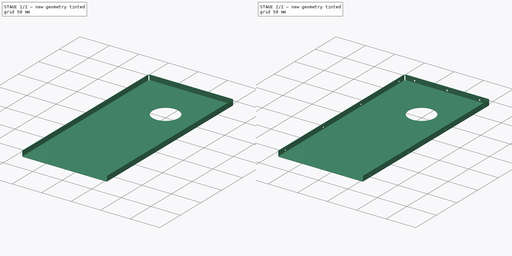
[diagram: build sequence overview — one tinted view per stage of 2, left to right]
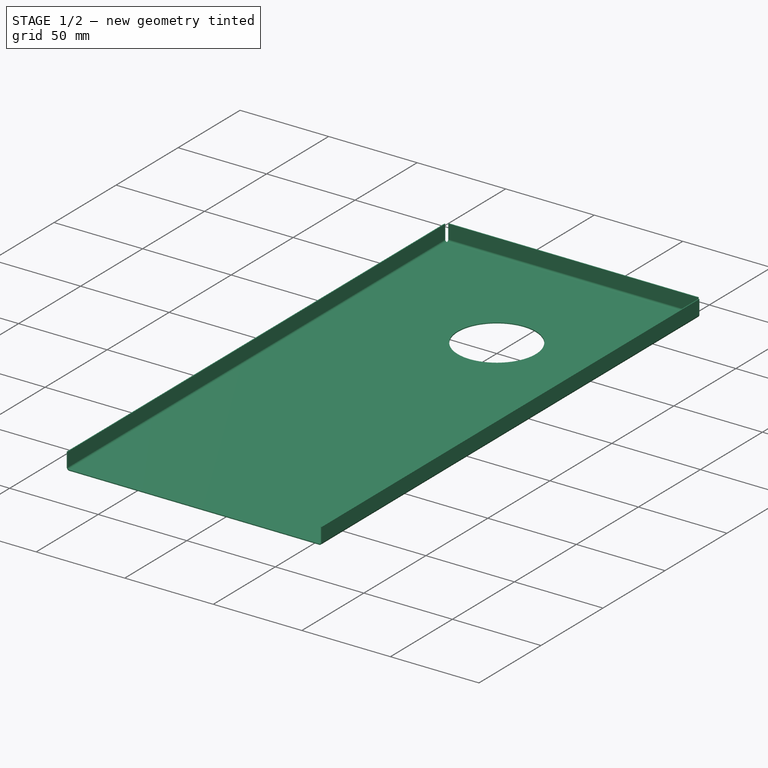
[diagram: stage 1 of 2 — iso view after this stage's code; geometry added in this stage tinted green]
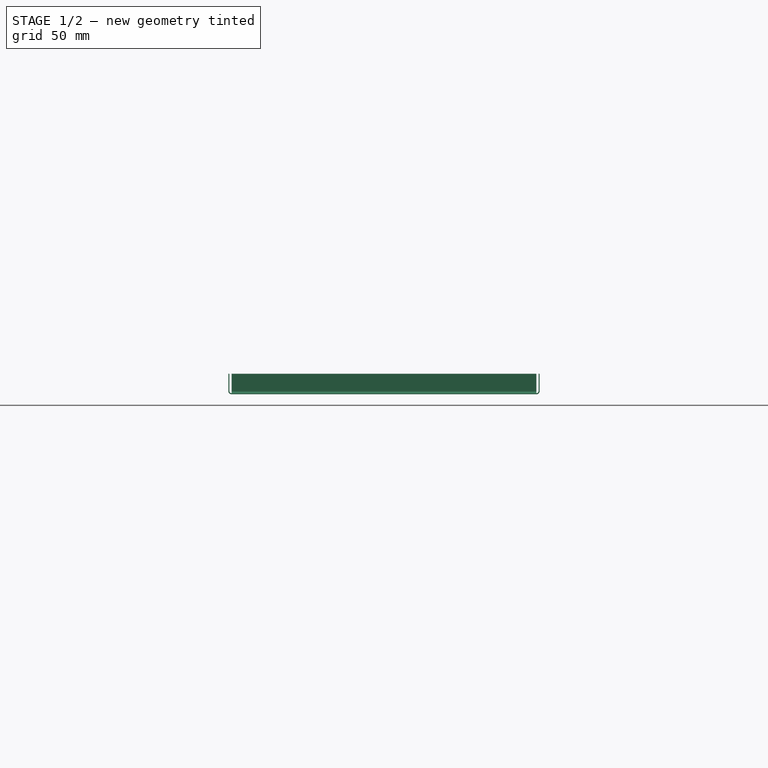
[diagram: stage 1 of 2 — front view after this stage's code; geometry added in this stage tinted green]
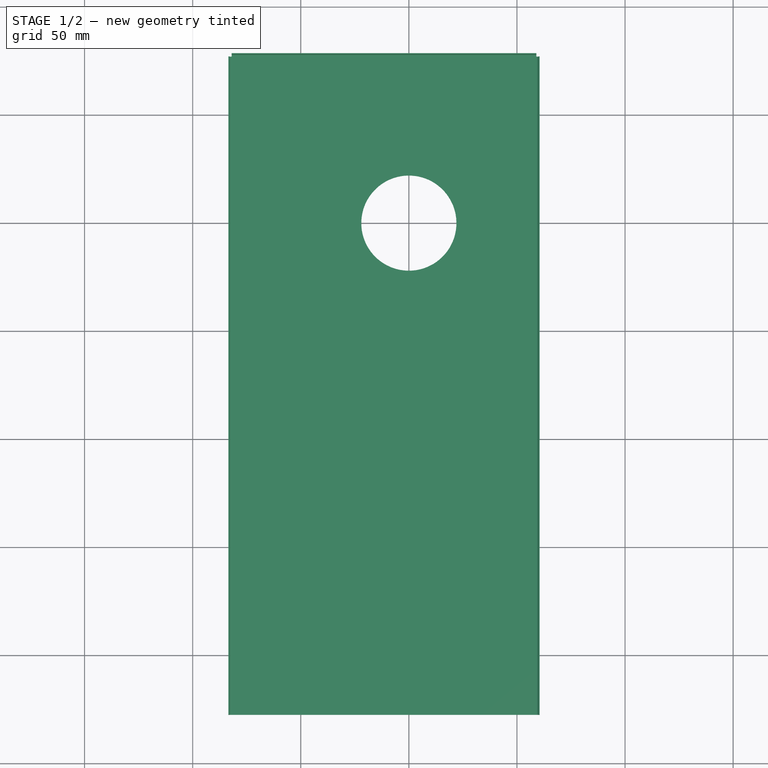
[diagram: stage 1 of 2 — top view after this stage's code; geometry added in this stage tinted green]
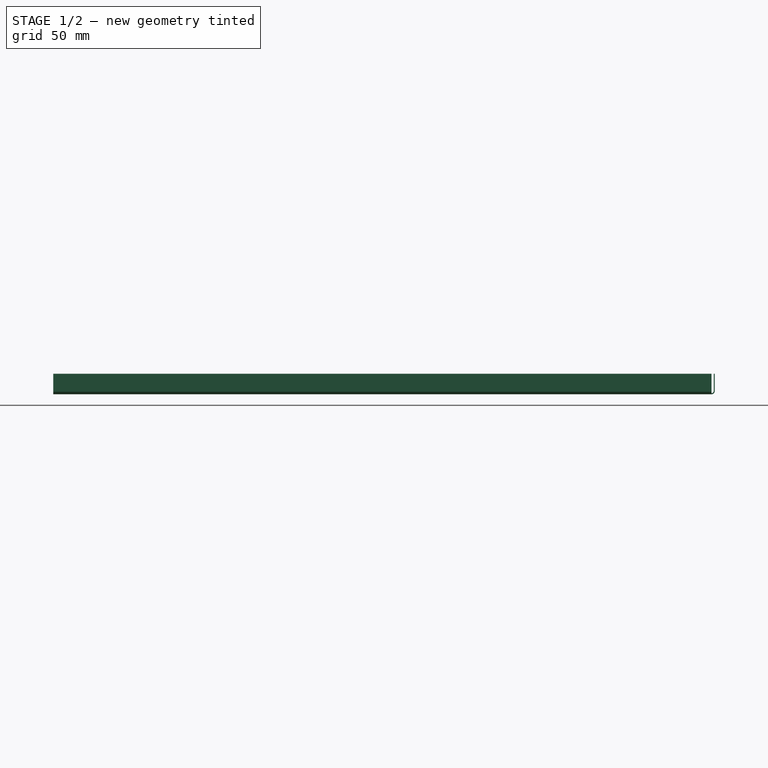
[diagram: stage 1 of 2 — right view after this stage's code; geometry added in this stage tinted green]
FCSTD DOCUMENT  (FreeCAD 0.16RUnknown)
Label: cover_side
License: CreativeCommons Attribution-ShareAlike
LicenseURL: http://creativecommons.org/licenses/by-sa/4.0/
objects: Drawing::FeatureViewPython×28, Sketcher::SketchObject×3, PartDesign::Pocket×2, Drawing::FeatureViewPart×2, PartDesign::Pad×1, Part::FeaturePython×1, Part::Feature×1, Drawing::FeaturePage×1
note: 11 computed .brp shape members not serialized (recipe doc carries the construction recipe); baked Part::Feature solids carry a one-line shape summary decoded from their .brp

FEATURE [Sketcher::SketchObject] Sketch
  sketch-geometry (5):
    g0: Circle CenterX=0 CenterY=0 CenterZ=0 NormalX=0 NormalY=0 NormalZ=1 Radius=22
    g1: LineSegment StartX=-82 StartY=77 StartZ=0 EndX=59 EndY=77 EndZ=0
    g2: LineSegment StartX=59 StartY=77 StartZ=0 EndX=59 EndY=-227.5 EndZ=0
    g3: LineSegment StartX=59 StartY=-227.5 StartZ=0 EndX=-82 EndY=-227.5 EndZ=0
    g4: LineSegment StartX=-82 StartY=-227.5 StartZ=0 EndX=-82 EndY=77 EndZ=0
  constraints (14):
    c: Coincident(g0,g-1)
    c: Coincident(g1,g2)
    c: Coincident(g2,g3)
    c: Coincident(g3,g4)
    c: Coincident(g4,g1)
    c: Horizontal(g1)
    c: Horizontal(g3)
    c: Vertical(g2)
    c: Vertical(g4)
    c: Radius(g0) = 22
    c: DistanceY(g2,g2) = 304.5  'side_W'
    c: DistanceY(g-1,g1) = 77  'circle_y'
    c: DistanceX(g1,g1) = 141  'side_L'
    c: DistanceX(g-1,g1) = 59  'circle_x'
FEATURE [PartDesign::Pad] Pad
  Length = 0.5
  Length2 = 100
  Sketch = -> Sketch
  Type = 0
FEATURE [Part::FeaturePython] Bend  # WARN: FeaturePython — macro-defined, semantics opaque (R4)
  angle = 90
  baseObject = -> Pad [Face4,Face1,Face2]
  gap1 = 0
  gap2 = 0
  invert = false
  length = 8
  radius = 1
  reliefd = 1
  reliefw = 0.5
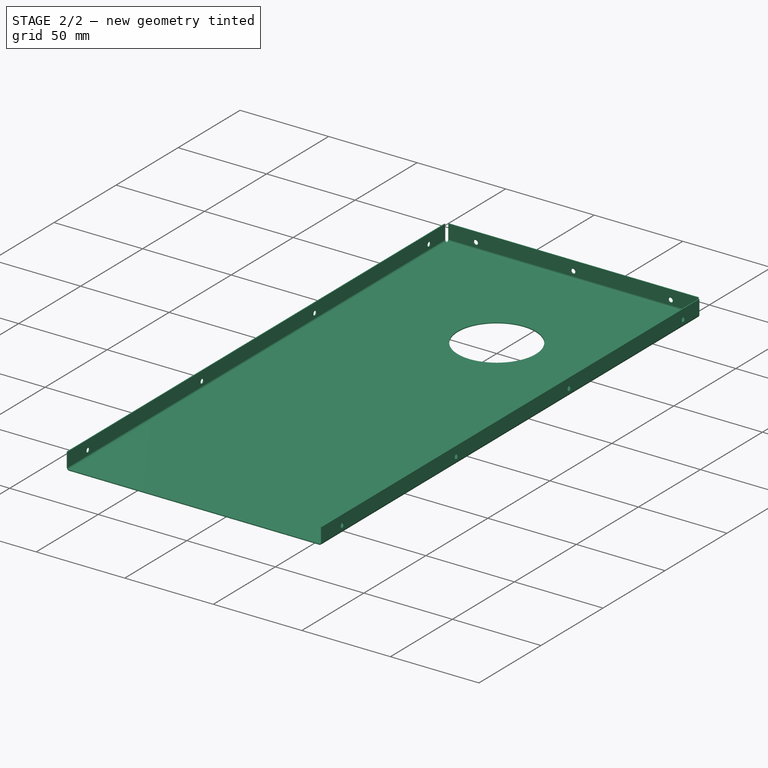
[diagram: stage 2 of 2 — iso view after this stage's code; geometry added in this stage tinted green]
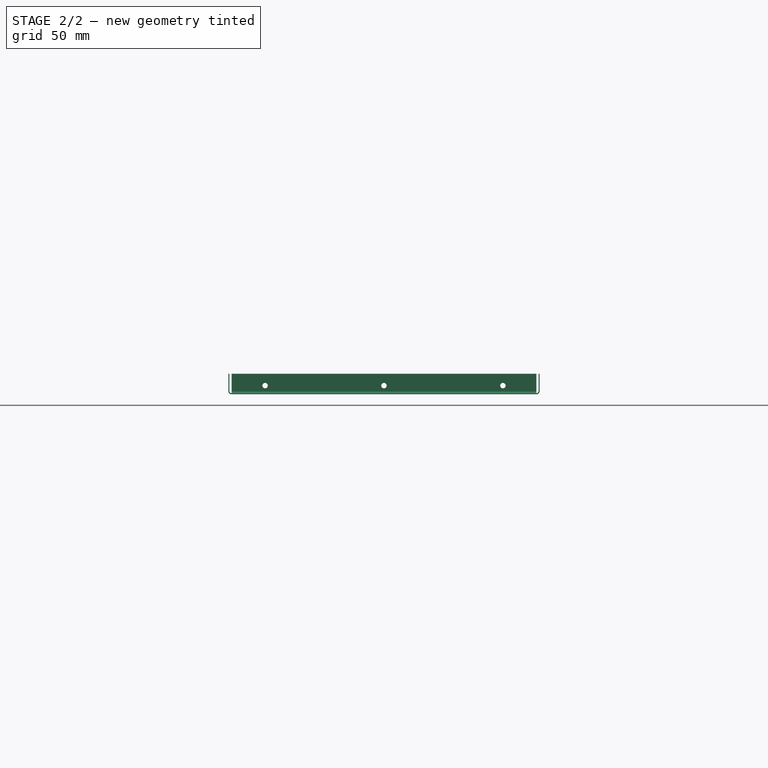
[diagram: stage 2 of 2 — front view after this stage's code; geometry added in this stage tinted green]
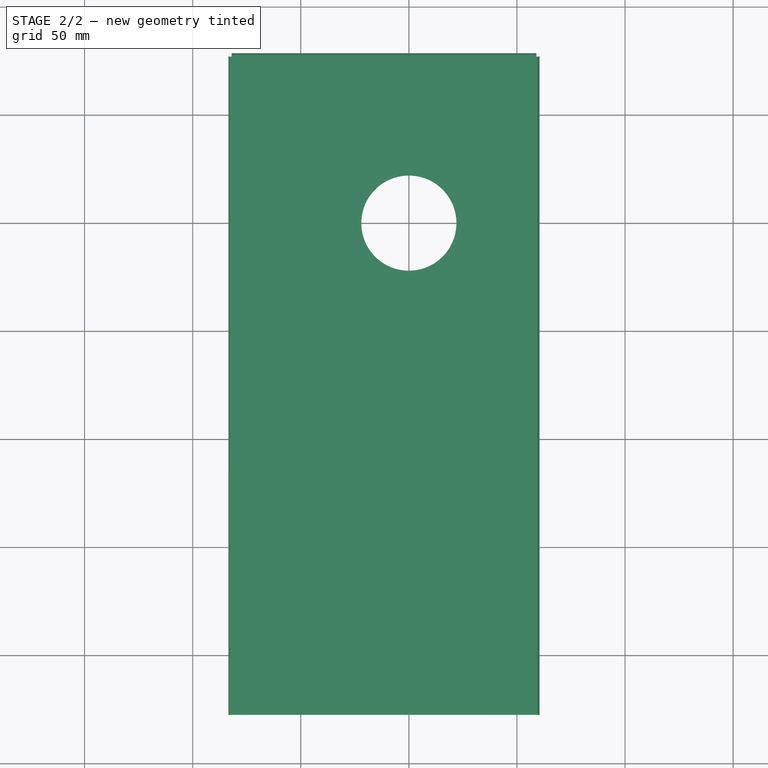
[diagram: stage 2 of 2 — top view after this stage's code; geometry added in this stage tinted green]
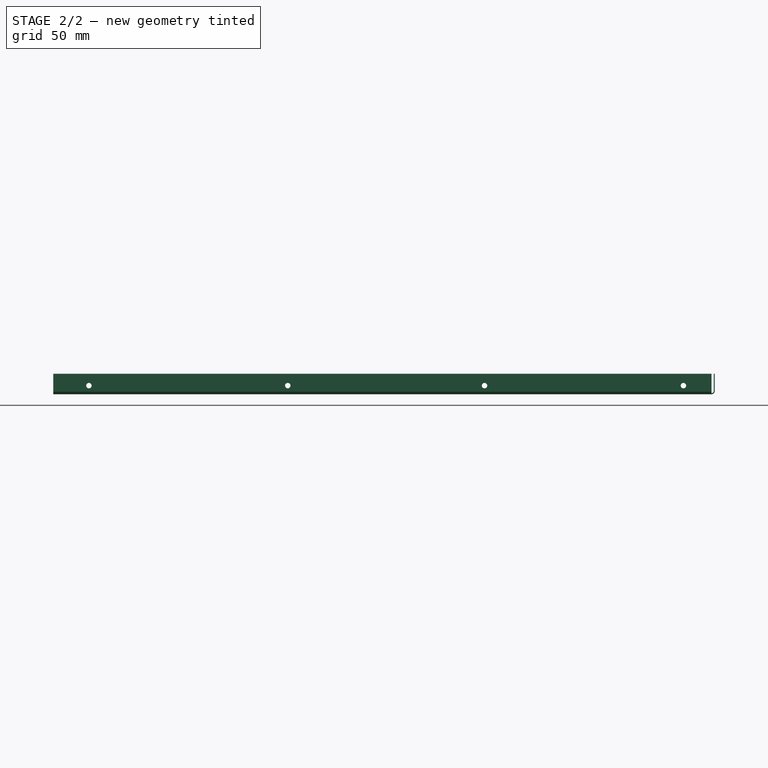
[diagram: stage 2 of 2 — right view after this stage's code; geometry added in this stage tinted green]
FEATURE [Sketcher::SketchObject] Sketch001
  Placement = pos=(0,78.5,0) rot=(0,0.707107,0.707107;3.14159rad)
  Support = -> Bend [Face22]
  expr: Constraints[6] = Sketch001.Constraints.bend_L + 0.5 + 1 - 5.5
  expr: Constraints[14] = Sketch.Constraints.side_L / 2 - Sketch.Constraints.circle_x
  expr: Constraints[5] = Sketch.Constraints.side_L + 1 - 32
  expr: Constraints.bend_L = Bend.length
  sketch-geometry (5):
    g0: Circle CenterX=66.5 CenterY=4 CenterZ=0 NormalX=0 NormalY=0 NormalZ=1 Radius=1.25
    g1: Circle CenterX=-43.5 CenterY=4 CenterZ=0 NormalX=0 NormalY=0 NormalZ=1 Radius=1.25
    g2: LineSegment [constr] StartX=-43.5 StartY=4 StartZ=0 EndX=66.5 EndY=4 EndZ=0
    g3: Circle CenterX=11.5 CenterY=4 CenterZ=0 NormalX=0 NormalY=0 NormalZ=1 Radius=1.25
    g4: LineSegment [constr] StartX=11.5 StartY=0 StartZ=0 EndX=11.5 EndY=8 EndZ=0
  constraints (15):
    c: Coincident(g2,g1)
    c: Coincident(g2,g0)
    c: Horizontal(g2)
    c: Equal(g0,g1)
    c: Radius(g0) = 1.25
    c: DistanceX(g2,g2) = 110
    c: DistanceY(g-1,g0) = 4
    c: PointOnObject(g3,g2)
    c: Equal(g3,g0)
    c: PointOnObject(g4,g-1)
    c: Vertical(g4)
    c: DistanceY(g4,g4) = 8  'bend_L'
    c: PointOnObject(g3,g4)
    c: Symmetric(g0,g1,g4)
    c: DistanceX(g-1,g3) = 11.5
FEATURE [PartDesign::Pocket] Pocket  label="Pocket-rivets-top"
  Length = 5
  Sketch = -> Sketch001
  Type = 1
FEATURE [Sketcher::SketchObject] Sketch002
  Placement = pos=(-83.5,0,0) rot=(0.57735,-0.57735,-0.57735;2.0944rad)
  Support = -> Pocket [Face26]
  expr: Constraints[17] = Sketch002.Constraints.bend_L + 0.5 + 1 - 5.5
  expr: Constraints[13] = round(Sketch002.Constraints.holes_l / 3)
  expr: Constraints.holes_l = Sketch.Constraints.side_W - 30 + 0.5
  expr: Constraints[18] = Sketch.Constraints.circle_y + 1 + 0.5 + 0.5
  expr: Constraints.bend_L = Bend.length
  sketch-geometry (7):
    g0: Circle CenterX=-64 CenterY=4 CenterZ=0 NormalX=0 NormalY=0 NormalZ=1 Radius=1.25
    g1: Circle CenterX=28 CenterY=4 CenterZ=0 NormalX=0 NormalY=0 NormalZ=1 Radius=1.25
    g2: Circle CenterX=119 CenterY=4 CenterZ=0 NormalX=0 NormalY=0 NormalZ=1 Radius=1.25
    g3: Circle CenterX=211 CenterY=4 CenterZ=0 NormalX=0 NormalY=0 NormalZ=1 Radius=1.25
    g4: LineSegment [constr] StartX=-64 StartY=4 StartZ=0 EndX=28 EndY=4 EndZ=0
    g5: LineSegment [constr] StartX=119 StartY=4 StartZ=0 EndX=211 EndY=4 EndZ=0
    g6: LineSegment [constr] StartX=-79 StartY=0 StartZ=0 EndX=-79 EndY=8 EndZ=0
  constraints (20):
    c: Coincident(g4,g0)
    c: Coincident(g4,g1)
    c: Horizontal(g4)
    c: Coincident(g5,g2)
    c: Coincident(g5,g3)
    c: Horizontal(g5)
    c: PointOnObject(g2,g4)
    c: Equal(g4,g5)
    c: DistanceX(g0,g3) = 275  'holes_l'
    c: Equal(g0,g1)
    c: Equal(g1,g2)
    c: Equal(g2,g3)
    c: Radius(g0) = 1.25
    c: DistanceX(g5,g5) = 92
    c: PointOnObject(g6,g-1)
    c: Vertical(g6)
    c: DistanceY(g6,g6) = 8  'bend_L'
    c: DistanceY(g-1,g3) = 4
    c: DistanceX(g6,g-1) = 79
    c: DistanceX(g6,g0) = 15
FEATURE [PartDesign::Pocket] Pocket001  label="Pocket-rivets-side"
  Length = 5
  Sketch = -> Sketch002
  Type = 1
FEATURE [Part::Feature] Unfold
  shape: bbox 160.8 x 314.4 x 0.5 mm, 42 faces (baked)
FEATURE [Drawing::FeatureViewPart] Ortho  label="Ortho_0_0"
  Direction = (0,0,1)
  HiddenWidth = 0.15
  LineWidth = 0.35
  Rotation = -90
  Scale = 0.5
  ShowHiddenLines = false
  ShowSmoothLines = false
  Source = -> Unfold
  Tolerance = 0.05
  ViewResult = <g id="Ortho_0_0"\n   transform="rotate(-90,80,130) translate(80,130) scale(0.5,0.5)"\n  >\n<g   stroke="rgb(0, 0, 0)"\n   stroke-width="0.7"\n   stroke-linecap="butt"\n   stroke-linejoin="miter"\n   fill="none"\n   transform="scale(1,-1)"\n  >\n<path id= "1" d=" M -82 78.8852 L -82 86.8852 " />\n<path id= "2" d=" M -82 78.8852 L 59 78.8852 " />\n<path id= "3" d=" M -82 86.8852 L 59 86.8852 " />\n<path id= "4" d=" M 59 78.8852 L 59 86.8852 " />\n<circle cx ="43.5" cy ="81.3852" r ="1.25" /><circle cx ="-11.5" cy ="81.3852" r ="1.25" /><circle cx ="-66.5" cy ="81.3852" r ="1.25" /><path id= "8" d=" M -82 77 L 59 77 " />\n<path id= "9" d=" M -82 77 L -82 78.8852 " />\n<path id= "10" d=" M 59 77 L 59 78.8852 " />\n<path id= "11" d=" M 59 77 L 60.8852 77 " />\n<path id= "12" d=" M 60.8852 77 L 68.8852 77 " />\n<path id= "13" d=" M 60.8852 77 L 60.8852 -227.5 " />\n<path id= "14" d=" M 68.8852 77 L 68.8852 -227.5 " />\n<path id= "15" d=" M 60.8852 -227.5 L 68.8852 -227.5 " />\n<circle cx ="63.3852" cy ="-119" r ="1.25" /><circle cx ="63.3852" cy ="-28" r ="1.25" /><circle cx ="63.3852" cy ="64" r ="1.25" /><circle cx ="63.3852" cy ="-211" r ="1.25" /><path id= "20" d=" M 59 77 L 59 -227.5 " />\n<path id= "21" d=" M 59 -227.5 L 60.8852 -227.5 " />\n<path id= "22" d=" M -82 77 L -83.8852 77 " />\n<path id= "23" d=" M -83.8852 -227.5 L -91.8852 -227.5 " />\n<path id= "24" d=" M -83.8852 -227.5 L -83.8852 77 " />\n<path id= "25" d=" M -91.8852 -227.5 L -91.8852 77 " />\n<path id= "26" d=" M -83.8852 77 L -91.8852 77 " />\n<circle cx ="-86.3852" cy ="-119" r ="1.25" /><circle cx ="-86.3852" cy ="-28" r ="1.25" /><circle cx ="-86.3852" cy ="64" r ="1.25" /><circle cx ="-86.3852" cy ="-211" r ="1.25" /><path id= "31" d=" M -82 -227.5 L -82 77 " />\n<path id= "32" d=" M -82 -227.5 L -83.8852 -227.5 " />\n<path id= "33" d=" M 59 -227.5 L -82 -227.5 " />\n<circle cx ="0" cy ="0" r ="22" /></g>\n</g>
  Visible = true
  X = 80
  Y = 130
FEATURE [Drawing::FeatureViewPart] Ortho002  label="Ortho_1_1"
  Direction = (0.57735,-0.57735,0.57735)
  HiddenWidth = 0.15
  LineWidth = 0.35
  Rotation = -60
  Scale = 0.5
  ShowHiddenLines = false
  ShowSmoothLines = false
  Source = -> Pocket001
  Tolerance = 0.05
  ViewResult = <blob: 6800 chars omitted>
  Visible = true
  X = 210
  Y = 45
FEATURE [Drawing::FeatureViewPython] dim002  # drawing view (typed FeaturePython)
  Rotation = 0
  ViewResult = <g> \n  <line x1="34.557400" y1="171.000000" x2="10.898195" y2="171.000000" style="stroke:rgb(0,0,255);stroke-width:0.20" />\n<line x1="34.557400" y1="100.500000" x2="10.898195" y2="100.500000" style="stroke:rgb(0,0,255);stroke-width:0.20" />\n<line x1="11.898195" y1="171.000000" x2="11.898195" y2="100.500000" style="stroke:rgb(0,0,255);stroke-width:0.20" /> \n  <polygon points="11.898195,100.500000 10.898195,103.500000 11.898195,104.500000 12.898195,103.500000" style="fill:rgb(0,0,255);stroke:rgb(0,0,255);stroke-width:0" /><polygon points="11.898195,171.000000 12.898195,168.000000 11.898195,167.000000 10.898195,168.000000" style="fill:rgb(0,0,255);stroke:rgb(0,0,255);stroke-width:0" /> \n  <text x="9.898195" y="135.750000" font-family="inherit" font-size="3.6" fill="rgb(0,0,255)" text-anchor="middle" transform="rotate(-90.000000 9.898195,135.750000)" >141</text> </g>
  Visible = true
  X = 0
  Y = 0
  arrowL1 = 3
  arrowL2 = 1
  arrowW = 2
  arrow_scheme = 0
  autoPlaceOffset = 2
  autoPlaceText = true
  click1_x = 11.8982
  click1_y = 120.723
  click2_x = 11.8982
  click2_y = 120.723
  comma_decimal_place = false
  dimension_line_overshoot = 1
  gap_datum_points = 2
  halfDimension_linear = false
  lineColor = rgb(0,0,255)
  strokeWidth = 0.2
  textFormat_linear = %(value)3.3f
  textRenderer_color = rgb(0,0,255)
  textRenderer_family = inherit
  textRenderer_size = 3.6
  unit_custom_scale = 1
  unit_scheme = 0
FEATURE [Drawing::FeatureViewPython] dia001  # drawing view (typed FeaturePython)
  Rotation = 0
  ViewResult = <g>  <circle cx ="80.000000" cy ="130.000000" r="0.250000" stroke="none" fill="rgb(0,0,255)" /> \n<line x1="97.855403" y1="117.530955" x2="70.981398" y2="136.298001" style="stroke:rgb(0,0,255);stroke-width:0.20" />\n<polygon points="89.018602,123.701999 85.986438,124.599762 85.739110,125.992181 87.131529,126.239508" style="fill:rgb(0,0,255);stroke:rgb(0,0,255);stroke-width:0" />\n<polygon points="70.981398,136.298001 74.013562,135.400238 74.260890,134.007819 72.868471,133.760492" style="fill:rgb(0,0,255);stroke:rgb(0,0,255);stroke-width:0" />\n<line x1="97.855403" y1="117.530955" x2="110.566158" y2="117.530955" style="stroke:rgb(0,0,255);stroke-width:0.20" />\n<text x="104.210780" y="115.530955" font-family="inherit" font-size="3.6" fill="rgb(0,0,255)" text-anchor="middle" transform="rotate(0.000000 104.210780,115.530955)" >Ø44</text> </g>
  Visible = true
  X = 0
  Y = 0
  arrowL1 = 3
  arrowL2 = 1
  arrowW = 2
  arrow_scheme = 0
  autoPlaceOffset = 2
  autoPlaceText = true
  centerPointDia = 0.5
  click1_x = 97.8554
  click1_y = 117.531
  click2_x = 110.566
  click2_y = 117.531
  click3_x = 110.566
  click3_y = 117.531
  comma_decimal_place = false
  lineColor = rgb(0,0,255)
  strokeWidth = 0.2
  textFormat_circular = Ø%(value)3.3f
  textRenderer_color = rgb(0,0,255)
  textRenderer_family = inherit
  textRenderer_size = 3.6
  unit_custom_scale = 1
  unit_scheme = 0
FEATURE [Drawing::FeatureViewPython] dia002  # drawing view (typed FeaturePython)
  Rotation = 0
  ViewResult = <g>  <circle cx ="185.500000" cy ="173.192600" r="0.250000" stroke="none" fill="rgb(0,0,255)" /> \n<line x1="181.678736" y1="181.360838" x2="185.764839" y2="172.626486" style="stroke:rgb(0,0,255);stroke-width:0.20" />\n<polygon points="185.235161,173.758714 183.058149,176.052318 183.540189,177.381844 184.869714,176.899804" style="fill:rgb(0,0,255);stroke:rgb(0,0,255);stroke-width:0" />\n<polygon points="185.764839,172.626486 187.941851,170.332882 187.459811,169.003356 186.130286,169.485396" style="fill:rgb(0,0,255);stroke:rgb(0,0,255);stroke-width:0" />\n<line x1="181.678736" y1="181.360838" x2="167.055426" y2="181.360838" style="stroke:rgb(0,0,255);stroke-width:0.20" />\n<text x="174.367081" y="179.360838" font-family="inherit" font-size="3.6" fill="rgb(0,0,255)" text-anchor="middle" transform="rotate(0.000000 174.367081,179.360838)" >Ø2.5</text> </g>
  Visible = true
  X = 0
  Y = 0
  arrowL1 = 3
  arrowL2 = 1
  arrowW = 2
  arrow_scheme = 0
  autoPlaceOffset = 2
  autoPlaceText = true
  centerPointDia = 0.5
  click1_x = 181.679
  click1_y = 181.361
  click2_x = 167.055
  click2_y = 180.248
  click3_x = 167.055
  click3_y = 180.248
  comma_decimal_place = false
  lineColor = rgb(0,0,255)
  strokeWidth = 0.2
  textFormat_circular = Ø%(value)3.3f
  textRenderer_color = rgb(0,0,255)
  textRenderer_family = inherit
  textRenderer_size = 3.6
  unit_custom_scale = 1
  unit_scheme = 0
FEATURE [Drawing::FeatureViewPython] dim009  # drawing view (typed FeaturePython)
  Rotation = 0
  ViewResult = <g> \n  <line x1="185.500000" y1="175.192600" x2="185.500000" y2="190.094248" style="stroke:rgb(0,0,255);stroke-width:0.20" />\n<line x1="139.500000" y1="175.192600" x2="139.500000" y2="190.094248" style="stroke:rgb(0,0,255);stroke-width:0.20" />\n<line x1="185.500000" y1="189.094248" x2="139.500000" y2="189.094248" style="stroke:rgb(0,0,255);stroke-width:0.20" /> \n  <polygon points="139.500000,189.094248 142.500000,190.094248 143.500000,189.094248 142.500000,188.094248" style="fill:rgb(0,0,255);stroke:rgb(0,0,255);stroke-width:0" /><polygon points="185.500000,189.094248 182.500000,188.094248 181.500000,189.094248 182.500000,190.094248" style="fill:rgb(0,0,255);stroke:rgb(0,0,255);stroke-width:0" /> \n  <text x="162.500000" y="187.094248" font-family="inherit" font-size="3.6" fill="rgb(0,0,255)" text-anchor="middle" transform="rotate(0.000000 162.500000,187.094248)" >92</text> </g>
  Visible = true
  X = 0
  Y = 0
  arrowL1 = 3
  arrowL2 = 1
  arrowW = 2
  arrow_scheme = 0
  autoPlaceOffset = 2
  autoPlaceText = true
  click1_x = 161.757
  click1_y = 189.094
  click2_x = 161.757
  click2_y = 189.094
  comma_decimal_place = false
  dimension_line_overshoot = 1
  gap_datum_points = 2
  halfDimension_linear = false
  lineColor = rgb(0,0,255)
  strokeWidth = 0.2
  textFormat_linear = %(value)3.3f
  textRenderer_color = rgb(0,0,255)
  textRenderer_family = inherit
  textRenderer_size = 3.6
  unit_custom_scale = 1
  unit_scheme = 0
FEATURE [Drawing::FeatureViewPython] dim010  # drawing view (typed FeaturePython)
  Rotation = 0
  ViewResult = <g> \n  <line x1="94.000000" y1="175.192600" x2="94.000000" y2="190.113594" style="stroke:rgb(0,0,255);stroke-width:0.20" />\n<line x1="139.500000" y1="175.192600" x2="139.500000" y2="190.113594" style="stroke:rgb(0,0,255);stroke-width:0.20" />\n<line x1="94.000000" y1="189.113594" x2="139.500000" y2="189.113594" style="stroke:rgb(0,0,255);stroke-width:0.20" /> \n  <polygon points="139.500000,189.113594 136.500000,188.113594 135.500000,189.113594 136.500000,190.113594" style="fill:rgb(0,0,255);stroke:rgb(0,0,255);stroke-width:0" /><polygon points="94.000000,189.113594 97.000000,190.113594 98.000000,189.113594 97.000000,188.113594" style="fill:rgb(0,0,255);stroke:rgb(0,0,255);stroke-width:0" /> \n  <text x="116.750000" y="187.113594" font-family="inherit" font-size="3.6" fill="rgb(0,0,255)" text-anchor="middle" transform="rotate(0.000000 116.750000,187.113594)" >91</text> </g>
  Visible = true
  X = 0
  Y = 0
  arrowL1 = 3
  arrowL2 = 1
  arrowW = 2
  arrow_scheme = 0
  autoPlaceOffset = 2
  autoPlaceText = true
  click1_x = 192.257
  click1_y = 189.114
  click2_x = 192.257
  click2_y = 189.114
  comma_decimal_place = false
  dimension_line_overshoot = 1
  gap_datum_points = 2
  halfDimension_linear = false
  lineColor = rgb(0,0,255)
  strokeWidth = 0.2
  textFormat_linear = %(value)3.3f
  textRenderer_color = rgb(0,0,255)
  textRenderer_family = inherit
  textRenderer_size = 3.6
  unit_custom_scale = 1
  unit_scheme = 0
FEATURE [Drawing::FeatureViewPython] dim011  # drawing view (typed FeaturePython)
  Rotation = 0
  ViewResult = <g> \n  <line x1="48.000000" y1="175.192600" x2="48.000000" y2="190.153122" style="stroke:rgb(0,0,255);stroke-width:0.20" />\n<line x1="94.000000" y1="175.192600" x2="94.000000" y2="190.153122" style="stroke:rgb(0,0,255);stroke-width:0.20" />\n<line x1="48.000000" y1="189.153122" x2="94.000000" y2="189.153122" style="stroke:rgb(0,0,255);stroke-width:0.20" /> \n  <polygon points="94.000000,189.153122 91.000000,188.153122 90.000000,189.153122 91.000000,190.153122" style="fill:rgb(0,0,255);stroke:rgb(0,0,255);stroke-width:0" /><polygon points="48.000000,189.153122 51.000000,190.153122 52.000000,189.153122 51.000000,188.153122" style="fill:rgb(0,0,255);stroke:rgb(0,0,255);stroke-width:0" /> \n  <text x="71.000000" y="187.153122" font-family="inherit" font-size="3.6" fill="rgb(0,0,255)" text-anchor="middle" transform="rotate(0.000000 71.000000,187.153122)" >92</text> </g>
  Visible = true
  X = 0
  Y = 0
  arrowL1 = 3
  arrowL2 = 1
  arrowW = 2
  arrow_scheme = 0
  autoPlaceOffset = 2
  autoPlaceText = true
  click1_x = 94.0392
  click1_y = 189.153
  click2_x = 94.0392
  click2_y = 189.153
  comma_decimal_place = false
  dimension_line_overshoot = 1
  gap_datum_points = 2
  halfDimension_linear = false
  lineColor = rgb(0,0,255)
  strokeWidth = 0.2
  textFormat_linear = %(value)3.3f
  textRenderer_color = rgb(0,0,255)
  textRenderer_family = inherit
  textRenderer_size = 3.6
  unit_custom_scale = 1
  unit_scheme = 0
FEATURE [Drawing::FeatureViewPython] dim012  # drawing view (typed FeaturePython)
  Rotation = 0
  ViewResult = <g> \n  <line x1="41.500000" y1="93.557400" x2="41.500000" y2="91.436838" style="stroke:rgb(0,0,255);stroke-width:0.20" />\n<line x1="48.000000" y1="96.307400" x2="48.000000" y2="91.436838" style="stroke:rgb(0,0,255);stroke-width:0.20" />\n<line x1="41.500000" y1="92.436838" x2="48.000000" y2="92.436838" style="stroke:rgb(0,0,255);stroke-width:0.20" /> \n  <polygon points="48.000000,92.436838 51.000000,93.436838 52.000000,92.436838 51.000000,91.436838" style="fill:rgb(0,0,255);stroke:rgb(0,0,255);stroke-width:0" /><polygon points="41.500000,92.436838 38.500000,91.436838 37.500000,92.436838 38.500000,93.436838" style="fill:rgb(0,0,255);stroke:rgb(0,0,255);stroke-width:0" /> \n  <text x="44.750000" y="90.436838" font-family="inherit" font-size="3.6" fill="rgb(0,0,255)" text-anchor="middle" transform="rotate(0.000000 44.750000,90.436838)" >13</text> </g>
  Visible = true
  X = 0
  Y = 0
  arrowL1 = 3
  arrowL2 = 1
  arrowW = 2
  arrow_scheme = 0
  autoPlaceOffset = 2
  autoPlaceText = true
  click1_x = 47.513
  click1_y = 92.4368
  click2_x = 47.513
  click2_y = 92.4368
  comma_decimal_place = false
  dimension_line_overshoot = 1
  gap_datum_points = 2
  halfDimension_linear = false
  lineColor = rgb(0,0,255)
  strokeWidth = 0.2
  textFormat_linear = %(value)3.3f
  textRenderer_color = rgb(0,0,255)
  textRenderer_family = inherit
  textRenderer_size = 3.6
  unit_custom_scale = 1
  unit_scheme = 0
FEATURE [Drawing::FeatureViewPython] dim001  # drawing view (typed FeaturePython)
  Rotation = 0
  ViewResult = <g> \n  <line x1="41.500000" y1="93.557400" x2="41.500000" y2="79.854279" style="stroke:rgb(0,0,255);stroke-width:0.20" />\n<line x1="193.750000" y1="93.557400" x2="193.750000" y2="79.854279" style="stroke:rgb(0,0,255);stroke-width:0.20" />\n<line x1="41.500000" y1="80.854279" x2="193.750000" y2="80.854279" style="stroke:rgb(0,0,255);stroke-width:0.20" /> \n  <polygon points="193.750000,80.854279 190.750000,79.854279 189.750000,80.854279 190.750000,81.854279" style="fill:rgb(0,0,255);stroke:rgb(0,0,255);stroke-width:0" /><polygon points="41.500000,80.854279 44.500000,81.854279 45.500000,80.854279 44.500000,79.854279" style="fill:rgb(0,0,255);stroke:rgb(0,0,255);stroke-width:0" /> \n  <text x="117.625000" y="78.854279" font-family="inherit" font-size="3.6" fill="rgb(0,0,255)" text-anchor="middle" transform="rotate(0.000000 117.625000,78.854279)" >304.5</text> </g>
  Visible = true
  X = 0
  Y = 0
  arrowL1 = 3
  arrowL2 = 1
  arrowW = 2
  arrow_scheme = 0
  autoPlaceOffset = 2
  autoPlaceText = true
  click1_x = 92.3523
  click1_y = 80.8543
  click2_x = 92.3523
  click2_y = 80.8543
  comma_decimal_place = false
  dimension_line_overshoot = 1
  gap_datum_points = 2
  halfDimension_linear = false
  lineColor = rgb(0,0,255)
  strokeWidth = 0.2
  textFormat_linear = %(value)3.3f
  textRenderer_color = rgb(0,0,255)
  textRenderer_family = inherit
  textRenderer_size = 3.6
  unit_custom_scale = 1
  unit_scheme = 0
FEATURE [Drawing::FeatureViewPython] dim014  # drawing view (typed FeaturePython)
  Rotation = 0
  ViewResult = <g> \n  <line x1="34.557400" y1="100.500000" x2="19.052597" y2="100.500000" style="stroke:rgb(0,0,255);stroke-width:0.20" />\n<line x1="37.307400" y1="135.750000" x2="19.052597" y2="135.750000" style="stroke:rgb(0,0,255);stroke-width:0.20" />\n<line x1="20.052597" y1="100.500000" x2="20.052597" y2="135.750000" style="stroke:rgb(0,0,255);stroke-width:0.20" /> \n  <polygon points="20.052597,135.750000 21.052597,132.750000 20.052597,131.750000 19.052597,132.750000" style="fill:rgb(0,0,255);stroke:rgb(0,0,255);stroke-width:0" /><polygon points="20.052597,100.500000 19.052597,103.500000 20.052597,104.500000 21.052597,103.500000" style="fill:rgb(0,0,255);stroke:rgb(0,0,255);stroke-width:0" /> \n  <text x="18.052597" y="118.125000" font-family="inherit" font-size="3.6" fill="rgb(0,0,255)" text-anchor="middle" transform="rotate(-90.000000 18.052597,118.125000)" >70.5</text> </g>
  Visible = true
  X = 0
  Y = 0
  arrowL1 = 3
  arrowL2 = 1
  arrowW = 2
  arrow_scheme = 0
  autoPlaceOffset = 2
  autoPlaceText = true
  click1_x = 20.0526
  click1_y = 131.262
  click2_x = 20.0526
  click2_y = 131.262
  comma_decimal_place = false
  dimension_line_overshoot = 1
  gap_datum_points = 2
  halfDimension_linear = false
  lineColor = rgb(0,0,255)
  strokeWidth = 0.2
  textFormat_linear = %(value)3.3f
  textRenderer_color = rgb(0,0,255)
  textRenderer_family = inherit
  textRenderer_size = 3.6
  unit_custom_scale = 1
  unit_scheme = 0
FEATURE [Drawing::FeatureViewPython] dim005  # drawing view (typed FeaturePython)
  Rotation = 0
  ViewResult = <g> \n  <line x1="37.307400" y1="135.750000" x2="19.057309" y2="135.750000" style="stroke:rgb(0,0,255);stroke-width:0.20" />\n<line x1="37.307400" y1="163.250000" x2="19.057309" y2="163.250000" style="stroke:rgb(0,0,255);stroke-width:0.20" />\n<line x1="20.057309" y1="135.750000" x2="20.057309" y2="163.250000" style="stroke:rgb(0,0,255);stroke-width:0.20" /> \n  <polygon points="20.057309,163.250000 21.057309,160.250000 20.057309,159.250000 19.057309,160.250000" style="fill:rgb(0,0,255);stroke:rgb(0,0,255);stroke-width:0" /><polygon points="20.057309,135.750000 19.057309,138.750000 20.057309,139.750000 21.057309,138.750000" style="fill:rgb(0,0,255);stroke:rgb(0,0,255);stroke-width:0" /> \n  <text x="18.057309" y="149.500000" font-family="inherit" font-size="3.6" fill="rgb(0,0,255)" text-anchor="middle" transform="rotate(-90.000000 18.057309,149.500000)" >55</text> </g>
  Visible = true
  X = 0
  Y = 0
  arrowL1 = 3
  arrowL2 = 1
  arrowW = 2
  arrow_scheme = 0
  autoPlaceOffset = 2
  autoPlaceText = true
  click1_x = 20.0573
  click1_y = 135.656
  click2_x = 20.0573
  click2_y = 135.656
  comma_decimal_place = false
  dimension_line_overshoot = 1
  gap_datum_points = 2
  halfDimension_linear = false
  lineColor = rgb(0,0,255)
  strokeWidth = 0.2
  textFormat_linear = %(value)3.3f
  textRenderer_color = rgb(0,0,255)
  textRenderer_family = inherit
  textRenderer_size = 3.6
  unit_custom_scale = 1
  unit_scheme = 0
FEATURE [Drawing::FeatureViewPython] centerLines005  # drawing view (typed FeaturePython)
  Rotation = 0
  ViewResult = <g transform="scale(0.500000,0.500000)" stroke="rgb(0,0,255)"  stroke-width="0.400000" > <path d="M 73.114800,271.500000 L 79.114800,271.500000 M 83.114800,271.500000 L 95.114800,271.500000 M 99.114800,271.500000 L 105.114800,271.500000 M 109.114800,271.500000 L 121.114800,271.500000 M 125.114800,271.500000 L 131.114800,271.500000 M 135.114800,271.500000 L 147.114800,271.500000 M 151.114800,271.500000 L 157.114800,271.500000 M 161.114800,271.500000 L 173.114800,271.500000 M 177.114800,271.500000 L 183.114800,271.500000 M 187.114800,271.500000 L 199.114800,271.500000 M 203.114800,271.500000 L 209.114800,271.500000 M 213.114800,271.500000 L 225.114800,271.500000 M 229.114800,271.500000 L 235.114800,271.500000 M 239.114800,271.500000 L 251.114800,271.500000 M 255.114800,271.500000 L 261.114800,271.500000 M 265.114800,271.500000 L 277.114800,271.500000 M 281.114800,271.500000 L 287.114800,271.500000 M 291.114800,271.500000 L 303.114800,271.500000 M 307.114800,271.500000 L 313.114800,271.500000 M 317.114800,271.500000 L 329.114800,271.500000 M 333.114800,271.500000 L 339.114800,271.500000 M 343.114800,271.500000 L 355.114800,271.500000 M 359.114800,271.500000 L 365.114800,271.500000 M 369.114800,271.500000 L 381.114800,271.500000 M 385.114800,271.500000 L 391.114800,271.500000 M 395.114800,271.500000 L 406.655187,271.500000 "/>\n<path d="M 73.114800,271.500000 L 67.114800,271.500000 M 63.114800,271.500000 L 51.114800,271.500000 M 47.114800,271.500000 L 41.114800,271.500000 M 37.114800,271.500000 L 28.992302,271.500000 "/> </g> 
  Visible = true
  X = 0
  Y = 0
  centerLine_color = rgb(0,0,255)
  centerLine_len_dash = 6
  centerLine_len_dot = 3
  centerLine_len_gap = 2
  centerLine_width = 0.2
  click1_x = 203.328
  click1_y = 135.997
  click2_x = 14.4962
  click2_y = 135.806
FEATURE [Drawing::FeatureViewPython] dim004  # drawing view (typed FeaturePython)
  Rotation = 0
  ViewResult = <g> \n  <line x1="80.000000" y1="128.000000" x2="80.000000" y2="85.454155" style="stroke:rgb(0,0,255);stroke-width:0.20" />\n<line x1="41.500000" y1="93.557400" x2="41.500000" y2="85.454155" style="stroke:rgb(0,0,255);stroke-width:0.20" />\n<line x1="80.000000" y1="86.454155" x2="41.500000" y2="86.454155" style="stroke:rgb(0,0,255);stroke-width:0.20" /> \n  <polygon points="41.500000,86.454155 44.500000,87.454155 45.500000,86.454155 44.500000,85.454155" style="fill:rgb(0,0,255);stroke:rgb(0,0,255);stroke-width:0" /><polygon points="80.000000,86.454155 77.000000,85.454155 76.000000,86.454155 77.000000,87.454155" style="fill:rgb(0,0,255);stroke:rgb(0,0,255);stroke-width:0" /> \n  <text x="60.750000" y="84.454155" font-family="inherit" font-size="3.6" fill="rgb(0,0,255)" text-anchor="middle" transform="rotate(0.000000 60.750000,84.454155)" >77</text> </g>
  Visible = true
  X = 0
  Y = 0
  arrowL1 = 3
  arrowL2 = 1
  arrowW = 2
  arrow_scheme = 0
  autoPlaceOffset = 2
  autoPlaceText = true
  click1_x = 61.2081
  click1_y = 86.4542
  click2_x = 61.2081
  click2_y = 86.4542
  comma_decimal_place = false
  dimension_line_overshoot = 1
  gap_datum_points = 2
  halfDimension_linear = false
  lineColor = rgb(0,0,255)
  strokeWidth = 0.2
  textFormat_linear = %(value)3.3f
  textRenderer_color = rgb(0,0,255)
  textRenderer_family = inherit
  textRenderer_size = 3.6
  unit_custom_scale = 1
  unit_scheme = 0
FEATURE [Drawing::FeatureViewPython] dim015  # drawing view (typed FeaturePython)
  Rotation = 0
  ViewResult = <g> \n  <line x1="78.000000" y1="130.000000" x2="25.363432" y2="130.000000" style="stroke:rgb(0,0,255);stroke-width:0.20" />\n<line x1="34.557400" y1="100.500000" x2="25.363432" y2="100.500000" style="stroke:rgb(0,0,255);stroke-width:0.20" />\n<line x1="26.363432" y1="130.000000" x2="26.363432" y2="100.500000" style="stroke:rgb(0,0,255);stroke-width:0.20" /> \n  <polygon points="26.363432,100.500000 25.363432,103.500000 26.363432,104.500000 27.363432,103.500000" style="fill:rgb(0,0,255);stroke:rgb(0,0,255);stroke-width:0" /><polygon points="26.363432,130.000000 27.363432,127.000000 26.363432,126.000000 25.363432,127.000000" style="fill:rgb(0,0,255);stroke:rgb(0,0,255);stroke-width:0" /> \n  <text x="24.363432" y="115.250000" font-family="inherit" font-size="3.6" fill="rgb(0,0,255)" text-anchor="middle" transform="rotate(-90.000000 24.363432,115.250000)" >59</text> </g>
  Visible = true
  X = 0
  Y = 0
  arrowL1 = 3
  arrowL2 = 1
  arrowW = 2
  arrow_scheme = 0
  autoPlaceOffset = 2
  autoPlaceText = true
  click1_x = 26.3634
  click1_y = 120.989
  click2_x = 26.3634
  click2_y = 120.989
  comma_decimal_place = false
  dimension_line_overshoot = 1
  gap_datum_points = 2
  halfDimension_linear = false
  lineColor = rgb(0,0,255)
  strokeWidth = 0.2
  textFormat_linear = %(value)3.3f
  textRenderer_color = rgb(0,0,255)
  textRenderer_family = inherit
  textRenderer_size = 3.6
  unit_custom_scale = 1
  unit_scheme = 0
FEATURE [Drawing::FeatureViewPython] centerLines001  # drawing view (typed FeaturePython)
  Rotation = 0
  ViewResult = <g transform="scale(0.500000,0.500000)" stroke="rgb(0,0,255)"  stroke-width="0.400000" > <path d="M 82.057400,201.000000 L 82.057400,195.000000 M 82.057400,191.000000 L 82.057400,179.000000 M 82.057400,175.000000 L 82.057400,169.000000 M 82.057400,165.000000 L 82.057400,153.000000 M 82.057400,149.000000 L 82.057400,143.000000 "/>\n<path d="M 82.057400,201.000000 L 82.057400,207.000000 M 82.057400,211.000000 L 82.057400,223.000000 M 82.057400,227.000000 L 82.057400,233.000000 M 82.057400,237.000000 L 82.057400,249.000000 M 82.057400,253.000000 L 82.057400,259.000000 M 82.057400,263.000000 L 82.057400,275.000000 M 82.057400,279.000000 L 82.057400,285.000000 M 82.057400,289.000000 L 82.057400,301.000000 M 82.057400,305.000000 L 82.057400,311.000000 M 82.057400,315.000000 L 82.057400,327.000000 M 82.057400,331.000000 L 82.057400,337.000000 M 82.057400,341.000000 L 82.057400,353.000000 M 82.057400,357.000000 L 82.057400,363.000000 M 82.057400,367.000000 L 82.057400,379.000000 M 82.057400,383.000000 L 82.057400,389.000000 "/> </g> 
  Visible = true
  X = 0
  Y = 0
  centerLine_color = rgb(0,0,255)
  centerLine_len_dash = 6
  centerLine_len_dot = 3
  centerLine_len_gap = 2
  centerLine_width = 0.2
  click1_x = 39.9581
  click1_y = 71.4604
  click2_x = 42.5769
  click2_y = 196.299
FEATURE [Drawing::FeatureViewPython] centerLines002  # drawing view (typed FeaturePython)
  Rotation = 0
  ViewResult = <g transform="scale(0.500000,0.500000)" stroke="rgb(0,0,255)"  stroke-width="0.400000" > <path d="M 83.000000,200.057400 L 77.000000,200.057400 M 73.000000,200.057400 L 61.000000,200.057400 M 57.000000,200.057400 L 51.000000,200.057400 M 47.000000,200.057400 L 35.000000,200.057400 M 31.000000,200.057400 L 25.000000,200.057400 M 21.000000,200.057400 L 15.256616,200.057400 "/>\n<path d="M 83.000000,200.057400 L 89.000000,200.057400 M 93.000000,200.057400 L 105.000000,200.057400 M 109.000000,200.057400 L 115.000000,200.057400 M 119.000000,200.057400 L 131.000000,200.057400 M 135.000000,200.057400 L 141.000000,200.057400 M 145.000000,200.057400 L 157.000000,200.057400 M 161.000000,200.057400 L 167.000000,200.057400 M 171.000000,200.057400 L 183.000000,200.057400 M 187.000000,200.057400 L 193.000000,200.057400 M 197.000000,200.057400 L 209.000000,200.057400 M 213.000000,200.057400 L 219.000000,200.057400 M 223.000000,200.057400 L 235.000000,200.057400 M 239.000000,200.057400 L 245.000000,200.057400 M 249.000000,200.057400 L 261.000000,200.057400 M 265.000000,200.057400 L 271.000000,200.057400 M 275.000000,200.057400 L 287.000000,200.057400 M 291.000000,200.057400 L 297.000000,200.057400 M 301.000000,200.057400 L 313.000000,200.057400 M 317.000000,200.057400 L 323.000000,200.057400 M 327.000000,200.057400 L 339.000000,200.057400 M 343.000000,200.057400 L 349.000000,200.057400 M 353.000000,200.057400 L 365.000000,200.057400 M 369.000000,200.057400 L 375.000000,200.057400 M 379.000000,200.057400 L 391.000000,200.057400 M 395.000000,200.057400 L 401.000000,200.057400 M 405.000000,200.057400 L 417.000000,200.057400 "/> </g> 
  Visible = true
  X = 0
  Y = 0
  centerLine_color = rgb(0,0,255)
  centerLine_len_dash = 6
  centerLine_len_dot = 3
  centerLine_len_gap = 2
  centerLine_width = 0.2
  click1_x = 7.62831
  click1_y = 96.4436
  click2_x = 208.689
  click2_y = 100.149
FEATURE [Drawing::FeatureViewPython] centerLines003  # drawing view (typed FeaturePython)
  Rotation = 0
  ViewResult = <g transform="scale(0.500000,0.500000)" stroke="rgb(0,0,255)"  stroke-width="0.400000" > <path d="M 83.000000,342.942600 L 77.000000,342.942600 M 73.000000,342.942600 L 61.000000,342.942600 M 57.000000,342.942600 L 51.000000,342.942600 M 47.000000,342.942600 L 35.000000,342.942600 M 31.000000,342.942600 L 25.000000,342.942600 M 21.000000,342.942600 L 14.038739,342.942600 "/>\n<path d="M 83.000000,342.942600 L 89.000000,342.942600 M 93.000000,342.942600 L 105.000000,342.942600 M 109.000000,342.942600 L 115.000000,342.942600 M 119.000000,342.942600 L 131.000000,342.942600 M 135.000000,342.942600 L 141.000000,342.942600 M 145.000000,342.942600 L 157.000000,342.942600 M 161.000000,342.942600 L 167.000000,342.942600 M 171.000000,342.942600 L 183.000000,342.942600 M 187.000000,342.942600 L 193.000000,342.942600 M 197.000000,342.942600 L 209.000000,342.942600 M 213.000000,342.942600 L 219.000000,342.942600 M 223.000000,342.942600 L 235.000000,342.942600 M 239.000000,342.942600 L 245.000000,342.942600 M 249.000000,342.942600 L 261.000000,342.942600 M 265.000000,342.942600 L 271.000000,342.942600 M 275.000000,342.942600 L 287.000000,342.942600 M 291.000000,342.942600 L 297.000000,342.942600 M 301.000000,342.942600 L 313.000000,342.942600 M 317.000000,342.942600 L 323.000000,342.942600 M 327.000000,342.942600 L 339.000000,342.942600 M 343.000000,342.942600 L 349.000000,342.942600 M 353.000000,342.942600 L 365.000000,342.942600 M 369.000000,342.942600 L 375.000000,342.942600 M 379.000000,342.942600 L 391.000000,342.942600 M 395.000000,342.942600 L 401.000000,342.942600 M 405.000000,342.942600 L 415.145579,342.942600 "/> </g> 
  Visible = true
  X = 0
  Y = 0
  centerLine_color = rgb(0,0,255)
  centerLine_len_dash = 6
  centerLine_len_dot = 3
  centerLine_len_gap = 2
  centerLine_width = 0.2
  click1_x = 7.01937
  click1_y = 171.187
  click2_x = 207.573
  click2_y = 172.619
FEATURE [Drawing::FeatureViewPython] text001  # drawing view (typed FeaturePython)
  Rotation = 0
  ViewResult = <g> <text x="7.591123" y="99.669985" font-family="inherit" font-size="5" fill="rgb(0,0,0)" text-anchor="inherit" transform="rotate(0.000000 7.591123,99.669985)" >A</text> </g>
  Visible = true
  X = 0
  Y = 0
  click1_x = 7.59112
  click1_y = 99.67
  rotation = 0
  text = A
  textRenderer_addText_color = rgb(0,0,0)
  textRenderer_addText_family = inherit
  textRenderer_addText_size = 5
FEATURE [Drawing::FeatureViewPython] text002  # drawing view (typed FeaturePython)
  Rotation = 0
  ViewResult = <g> <text x="6.589516" y="175.657078" font-family="inherit" font-size="5" fill="rgb(0,0,0)" text-anchor="inherit" transform="rotate(0.000000 6.589516,175.657078)" >B</text> </g>
  Visible = true
  X = 0
  Y = 0
  click1_x = 6.58952
  click1_y = 175.657
  rotation = 0
  text = B
  textRenderer_addText_color = rgb(0,0,0)
  textRenderer_addText_family = inherit
  textRenderer_addText_size = 5
FEATURE [Drawing::FeatureViewPython] text003  # drawing view (typed FeaturePython)
  Rotation = 0
  ViewResult = <g> <text x="41.338418" y="74.960864" font-family="inherit" font-size="5" fill="rgb(0,0,0)" text-anchor="inherit" transform="rotate(0.000000 41.338418,74.960864)" >C</text> </g>
  Visible = true
  X = 0
  Y = 0
  click1_x = 41.3384
  click1_y = 74.9609
  rotation = 0
  text = C
  textRenderer_addText_color = rgb(0,0,0)
  textRenderer_addText_family = inherit
  textRenderer_addText_size = 5
FEATURE [Drawing::FeatureViewPython] dim006  # drawing view (typed FeaturePython)
  Rotation = 0
  ViewResult = <g> \n  <line x1="36.557400" y1="98.500000" x2="36.557400" y2="66.347060" style="stroke:rgb(0,0,255);stroke-width:0.20" />\n<line x1="41.028700" y1="69.500000" x2="41.028700" y2="66.347060" style="stroke:rgb(0,0,255);stroke-width:0.20" />\n<line x1="36.557400" y1="67.347060" x2="41.028700" y2="67.347060" style="stroke:rgb(0,0,255);stroke-width:0.20" /> \n  <polygon points="41.028700,67.347060 44.028700,68.347060 45.028700,67.347060 44.028700,66.347060" style="fill:rgb(0,0,255);stroke:rgb(0,0,255);stroke-width:0" /><polygon points="36.557400,67.347060 33.557400,66.347060 32.557400,67.347060 33.557400,68.347060" style="fill:rgb(0,0,255);stroke:rgb(0,0,255);stroke-width:0" /> \n  <text x="38.793050" y="65.347060" font-family="inherit" font-size="3.6" fill="rgb(0,0,255)" text-anchor="middle" transform="rotate(0.000000 38.793050,65.347060)" >8.9</text> </g>
  Visible = true
  X = 0
  Y = 0
  arrowL1 = 3
  arrowL2 = 1
  arrowW = 2
  arrow_scheme = 0
  autoPlaceOffset = 2
  autoPlaceText = true
  click1_x = 37.9236
  click1_y = 67.3471
  click2_x = 37.9236
  click2_y = 67.3471
  comma_decimal_place = false
  dimension_line_overshoot = 1
  gap_datum_points = 2
  halfDimension_linear = false
  lineColor = rgb(0,0,255)
  strokeWidth = 0.2
  textFormat_linear = %(value)3.1f
  textRenderer_color = rgb(0,0,255)
  textRenderer_family = inherit
  textRenderer_size = 3.6
  unit_custom_scale = 1
  unit_scheme = 0
FEATURE [Drawing::FeatureViewPython] dim003  # drawing view (typed FeaturePython)
  Rotation = 0
  ViewResult = <g> \n  <line x1="36.557400" y1="173.000000" x2="36.557400" y2="200.269878" style="stroke:rgb(0,0,255);stroke-width:0.20" />\n<line x1="193.750000" y1="177.942600" x2="193.750000" y2="200.269878" style="stroke:rgb(0,0,255);stroke-width:0.20" />\n<line x1="36.557400" y1="199.269878" x2="193.750000" y2="199.269878" style="stroke:rgb(0,0,255);stroke-width:0.20" /> \n  <polygon points="193.750000,199.269878 190.750000,198.269878 189.750000,199.269878 190.750000,200.269878" style="fill:rgb(0,0,255);stroke:rgb(0,0,255);stroke-width:0" /><polygon points="36.557400,199.269878 39.557400,200.269878 40.557400,199.269878 39.557400,198.269878" style="fill:rgb(0,0,255);stroke:rgb(0,0,255);stroke-width:0" /> \n  <text x="115.153700" y="197.269878" font-family="inherit" font-size="3.6" fill="rgb(0,0,255)" text-anchor="middle" transform="rotate(0.000000 115.153700,197.269878)" >314.4</text> </g>
  Visible = true
  X = 0
  Y = 0
  arrowL1 = 3
  arrowL2 = 1
  arrowW = 2
  arrow_scheme = 0
  autoPlaceOffset = 2
  autoPlaceText = true
  click1_x = 113.869
  click1_y = 199.27
  click2_x = 113.869
  click2_y = 199.27
  comma_decimal_place = false
  dimension_line_overshoot = 1
  gap_datum_points = 2
  halfDimension_linear = false
  lineColor = rgb(0,0,255)
  strokeWidth = 0.2
  textFormat_linear = %(value)3.1f
  textRenderer_color = rgb(0,0,255)
  textRenderer_family = inherit
  textRenderer_size = 3.6
  unit_custom_scale = 1
  unit_scheme = 0
FEATURE [Drawing::FeatureViewPython] dim008  # drawing view (typed FeaturePython)
  Rotation = 0
  ViewResult = <g> \n  <line x1="195.750000" y1="95.557400" x2="212.774861" y2="95.557400" style="stroke:rgb(0,0,255);stroke-width:0.20" />\n<line x1="210.500000" y1="100.028700" x2="212.774861" y2="100.028700" style="stroke:rgb(0,0,255);stroke-width:0.20" />\n<line x1="211.774861" y1="95.557400" x2="211.774861" y2="100.028700" style="stroke:rgb(0,0,255);stroke-width:0.20" /> \n  <polygon points="211.774861,100.028700 210.774861,103.028700 211.774861,104.028700 212.774861,103.028700" style="fill:rgb(0,0,255);stroke:rgb(0,0,255);stroke-width:0" /><polygon points="211.774861,95.557400 212.774861,92.557400 211.774861,91.557400 210.774861,92.557400" style="fill:rgb(0,0,255);stroke:rgb(0,0,255);stroke-width:0" /> \n  <text x="209.774861" y="97.793050" font-family="inherit" font-size="3.6" fill="rgb(0,0,255)" text-anchor="middle" transform="rotate(-90.000000 209.774861,97.793050)" >8.9</text> </g>
  Visible = true
  X = 0
  Y = 0
  arrowL1 = 3
  arrowL2 = 1
  arrowW = 2
  arrow_scheme = 0
  autoPlaceOffset = 2
  autoPlaceText = true
  click1_x = 211.775
  click1_y = 98.7248
  click2_x = 211.775
  click2_y = 98.7248
  comma_decimal_place = false
  dimension_line_overshoot = 1
  gap_datum_points = 2
  halfDimension_linear = false
  lineColor = rgb(0,0,255)
  strokeWidth = 0.2
  textFormat_linear = %(value)3.1f
  textRenderer_color = rgb(0,0,255)
  textRenderer_family = inherit
  textRenderer_size = 3.6
  unit_custom_scale = 1
  unit_scheme = 0
FEATURE [Drawing::FeatureViewPython] dim013  # drawing view (typed FeaturePython)
  Rotation = 0
  ViewResult = <g> \n  <line x1="187.500000" y1="173.192600" x2="213.139607" y2="173.192600" style="stroke:rgb(0,0,255);stroke-width:0.20" />\n<line x1="195.750000" y1="175.942600" x2="213.139607" y2="175.942600" style="stroke:rgb(0,0,255);stroke-width:0.20" />\n<line x1="212.139607" y1="173.192600" x2="212.139607" y2="175.942600" style="stroke:rgb(0,0,255);stroke-width:0.20" /> \n  <polygon points="212.139607,175.942600 211.139607,178.942600 212.139607,179.942600 213.139607,178.942600" style="fill:rgb(0,0,255);stroke:rgb(0,0,255);stroke-width:0" /><polygon points="212.139607,173.192600 213.139607,170.192600 212.139607,169.192600 211.139607,170.192600" style="fill:rgb(0,0,255);stroke:rgb(0,0,255);stroke-width:0" /> \n  <text x="210.139607" y="174.567600" font-family="inherit" font-size="3.6" fill="rgb(0,0,255)" text-anchor="middle" transform="rotate(-90.000000 210.139607,174.567600)" >5.5</text> </g>
  Visible = true
  X = 0
  Y = 0
  arrowL1 = 3
  arrowL2 = 1
  arrowW = 2
  arrow_scheme = 0
  autoPlaceOffset = 2
  autoPlaceText = true
  click1_x = 212.14
  click1_y = 175.633
  click2_x = 212.14
  click2_y = 175.633
  comma_decimal_place = false
  dimension_line_overshoot = 1
  gap_datum_points = 2
  halfDimension_linear = false
  lineColor = rgb(0,0,255)
  strokeWidth = 0.2
  textFormat_linear = %(value)3.1f
  textRenderer_color = rgb(0,0,255)
  textRenderer_family = inherit
  textRenderer_size = 3.6
  unit_custom_scale = 1
  unit_scheme = 0
FEATURE [Drawing::FeatureViewPython] dim016  # drawing view (typed FeaturePython)
  Rotation = 0
  ViewResult = <g> \n  <line x1="36.557400" y1="173.000000" x2="36.557400" y2="190.437030" style="stroke:rgb(0,0,255);stroke-width:0.20" />\n<line x1="39.307400" y1="165.250000" x2="39.307400" y2="190.437030" style="stroke:rgb(0,0,255);stroke-width:0.20" />\n<line x1="36.557400" y1="189.437030" x2="39.307400" y2="189.437030" style="stroke:rgb(0,0,255);stroke-width:0.20" /> \n  <polygon points="39.307400,189.437030 42.307400,190.437030 43.307400,189.437030 42.307400,188.437030" style="fill:rgb(0,0,255);stroke:rgb(0,0,255);stroke-width:0" /><polygon points="36.557400,189.437030 33.557400,188.437030 32.557400,189.437030 33.557400,190.437030" style="fill:rgb(0,0,255);stroke:rgb(0,0,255);stroke-width:0" /> \n  <text x="37.932400" y="187.437030" font-family="inherit" font-size="3.6" fill="rgb(0,0,255)" text-anchor="middle" transform="rotate(0.000000 37.932400,187.437030)" >5.5</text> </g>
  Visible = true
  X = 0
  Y = 0
  arrowL1 = 3
  arrowL2 = 1
  arrowW = 2
  arrow_scheme = 0
  autoPlaceOffset = 2
  autoPlaceText = true
  click1_x = 37.3029
  click1_y = 189.437
  click2_x = 37.3029
  click2_y = 189.437
  comma_decimal_place = false
  dimension_line_overshoot = 1
  gap_datum_points = 2
  halfDimension_linear = false
  lineColor = rgb(0,0,255)
  strokeWidth = 0.2
  textFormat_linear = %(value)3.1f
  textRenderer_color = rgb(0,0,255)
  textRenderer_family = inherit
  textRenderer_size = 3.6
  unit_custom_scale = 1
  unit_scheme = 0
FEATURE [Drawing::FeatureViewPython] dim007  # drawing view (typed FeaturePython)
  Rotation = 0
  ViewResult = <g> \n  <line x1="195.750000" y1="175.942600" x2="220.898230" y2="175.942600" style="stroke:rgb(0,0,255);stroke-width:0.20" />\n<line x1="195.750000" y1="95.557400" x2="220.898230" y2="95.557400" style="stroke:rgb(0,0,255);stroke-width:0.20" />\n<line x1="219.898230" y1="175.942600" x2="219.898230" y2="95.557400" style="stroke:rgb(0,0,255);stroke-width:0.20" /> \n  <polygon points="219.898230,95.557400 218.898230,98.557400 219.898230,99.557400 220.898230,98.557400" style="fill:rgb(0,0,255);stroke:rgb(0,0,255);stroke-width:0" /><polygon points="219.898230,175.942600 220.898230,172.942600 219.898230,171.942600 218.898230,172.942600" style="fill:rgb(0,0,255);stroke:rgb(0,0,255);stroke-width:0" /> \n  <text x="217.898230" y="135.750000" font-family="inherit" font-size="3.6" fill="rgb(0,0,255)" text-anchor="middle" transform="rotate(-90.000000 217.898230,135.750000)" >160.8</text> </g>
  Visible = true
  X = 0
  Y = 0
  arrowL1 = 3
  arrowL2 = 1
  arrowW = 2
  arrow_scheme = 0
  autoPlaceOffset = 2
  autoPlaceText = true
  click1_x = 219.898
  click1_y = 140.067
  click2_x = 219.898
  click2_y = 140.067
  comma_decimal_place = false
  dimension_line_overshoot = 1
  gap_datum_points = 2
  halfDimension_linear = false
  lineColor = rgb(0,0,255)
  strokeWidth = 0.2
  textFormat_linear = %(value)3.1f
  textRenderer_color = rgb(0,0,255)
  textRenderer_family = inherit
  textRenderer_size = 3.6
  unit_custom_scale = 1
  unit_scheme = 0
FEATURE [Drawing::FeatureViewPython] table001  # drawing view (typed FeaturePython)
  Rotation = 0
  ViewResult = <blob: 3127 chars omitted>
  Visible = true
  X = 0
  Y = 0
  border_color = rgb(0,0,0)
  border_width = 0.3
  click1_x = 20
  click1_y = 20
  column_widths = [10,25,25,25]
  contents = Tag | Direction | Angle | Inner Radius | A | UP | 90 | 1mm | B | UP | 90 | 1mm | C | UP | 90 | 1mm
  extra_rows = 0
  padding_x = 1
  padding_y = 1
  row_heights = [5]
  textRenderer_table_color = rgb(0,0,0)
  textRenderer_table_family = inherit
  textRenderer_table_size = 4
FEATURE [Drawing::FeatureViewPython] text004  # drawing view (typed FeaturePython)
  Rotation = 0
  ViewResult = <g> <text x="20.000000" y="15.000000" font-family="inherit" font-size="5" fill="rgb(0,0,0)" text-anchor="inherit" transform="rotate(0.000000 20.000000,15.000000)" >Scale 0.5</text> </g>
  Visible = true
  X = 0
  Y = 0
  click1_x = 20
  click1_y = 15
  rotation = 0
  text = Scale 0.5
  textRenderer_addText_color = rgb(0,0,0)
  textRenderer_addText_family = inherit
  textRenderer_addText_size = 5
FEATURE [Drawing::FeatureViewPython] text005  # drawing view (typed FeaturePython)
  Rotation = 0
  ViewResult = <g> <text x="20.000000" y="10.000000" font-family="inherit" font-size="5" fill="rgb(0,0,0)" text-anchor="inherit" transform="rotate(0.000000 20.000000,10.000000)" >SatNOGS Rotator v3.1, cover_side</text> </g>
  Visible = true
  X = 0
  Y = 0
  click1_x = 20
  click1_y = 10
  rotation = 0
  text = SatNOGS Rotator v3.1, cover_side
  textRenderer_addText_color = rgb(0,0,0)
  textRenderer_addText_family = inherit
  textRenderer_addText_size = 5
FEATURE [Drawing::FeaturePage] Page
  Group = -> [Ortho,Ortho002,dim002,dia001,dia002,dim009,dim010,dim011,dim012,dim001,dim014,dim005,centerLines005,dim004,dim015,centerLines001,centerLines002,centerLines003,text001,text002,text003,dim006,dim003,dim008,dim013,dim016,dim007,table001,text004,text005]
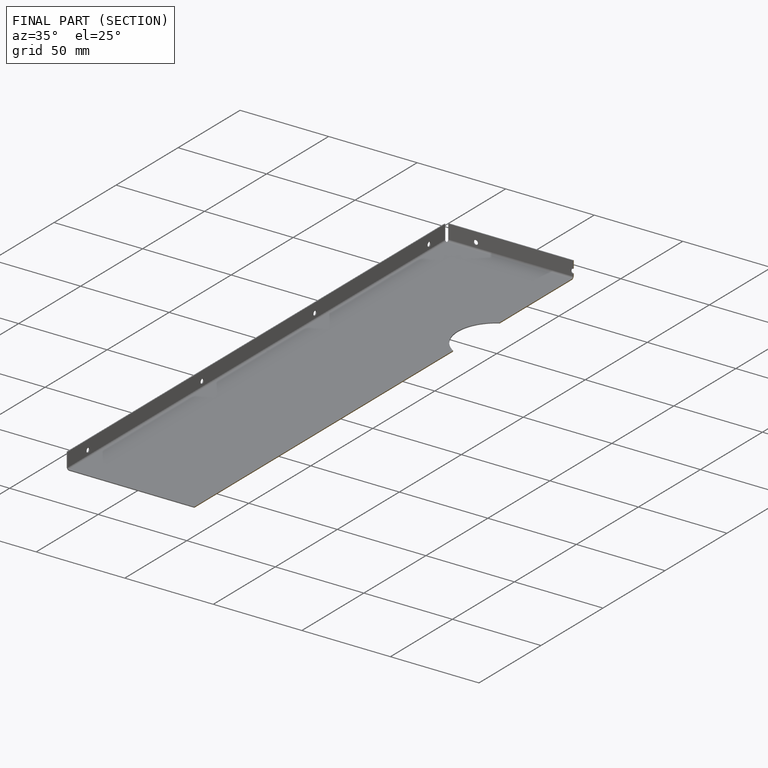
[diagram: finished part — half-section view (interior)]
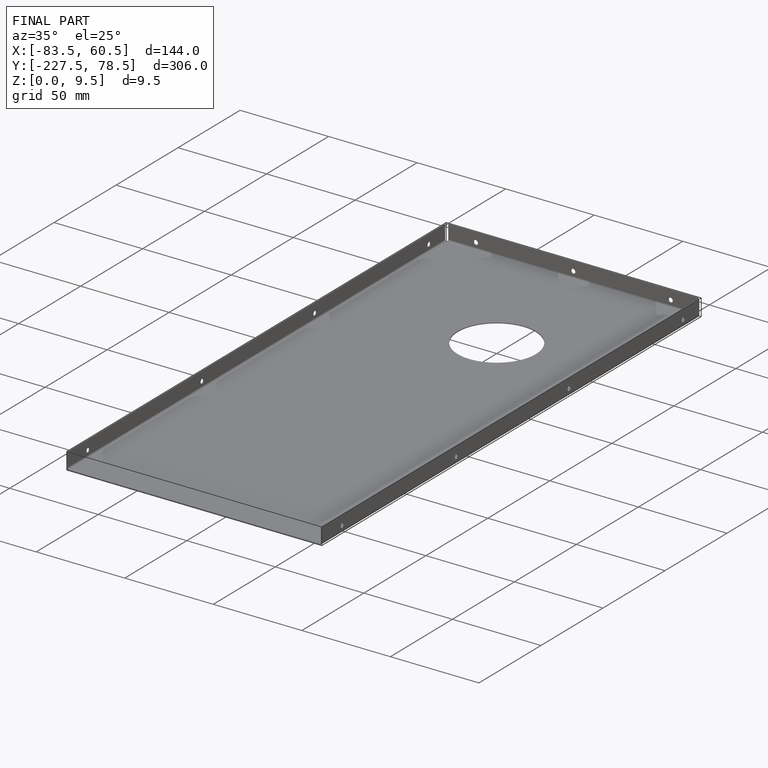
[diagram: finished part — iso view with bounding-box wireframe]
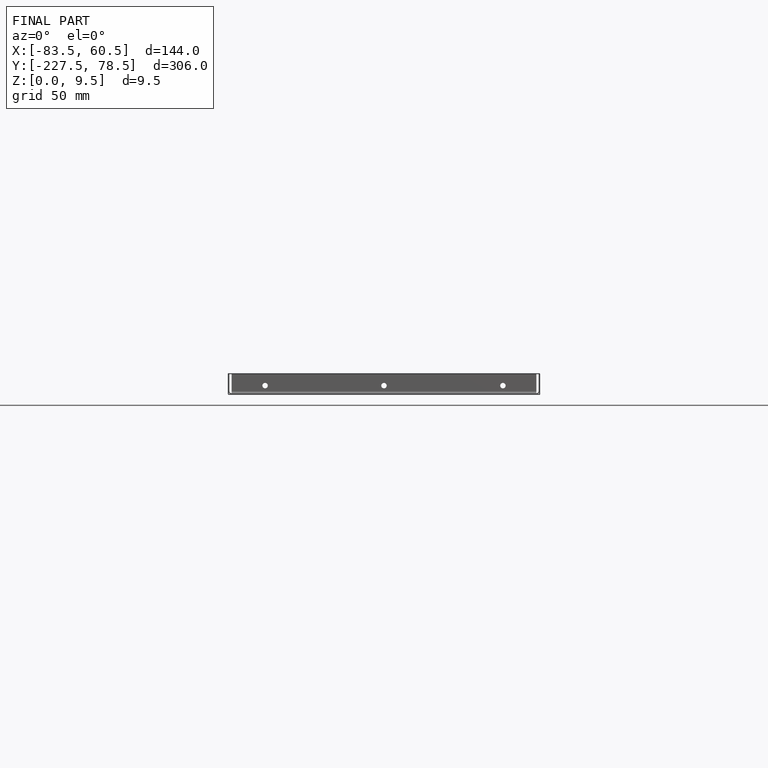
[diagram: finished part — front view with bounding-box wireframe]
